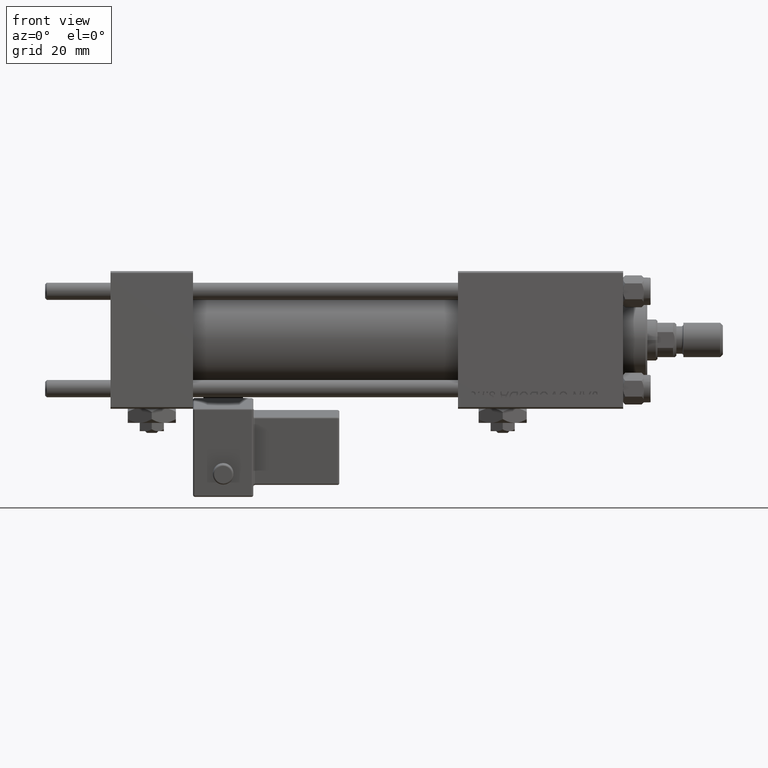
[diagram: clean part render]
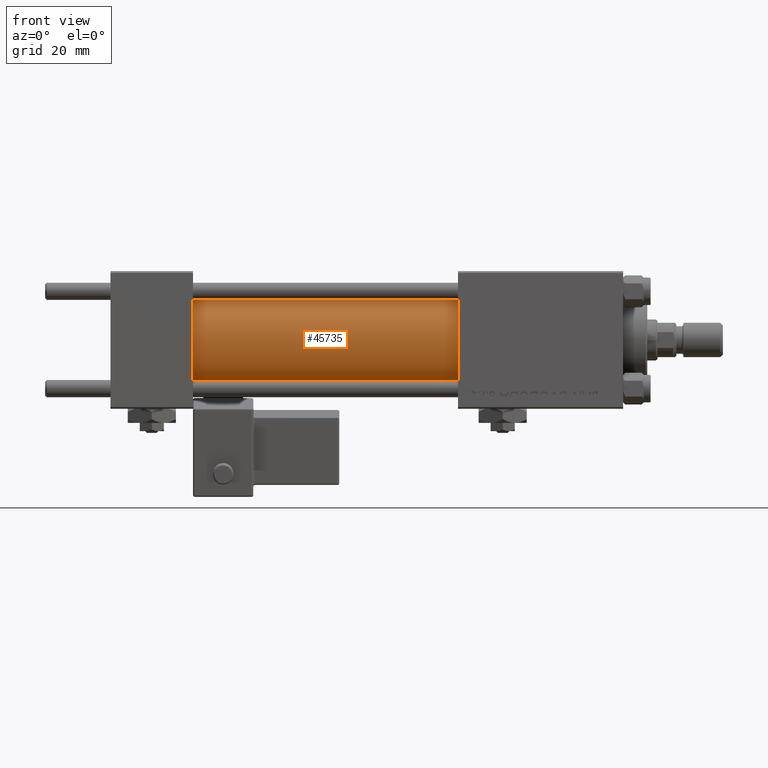
[diagram: same view with one face highlighted and labeled with its STEP entity id]
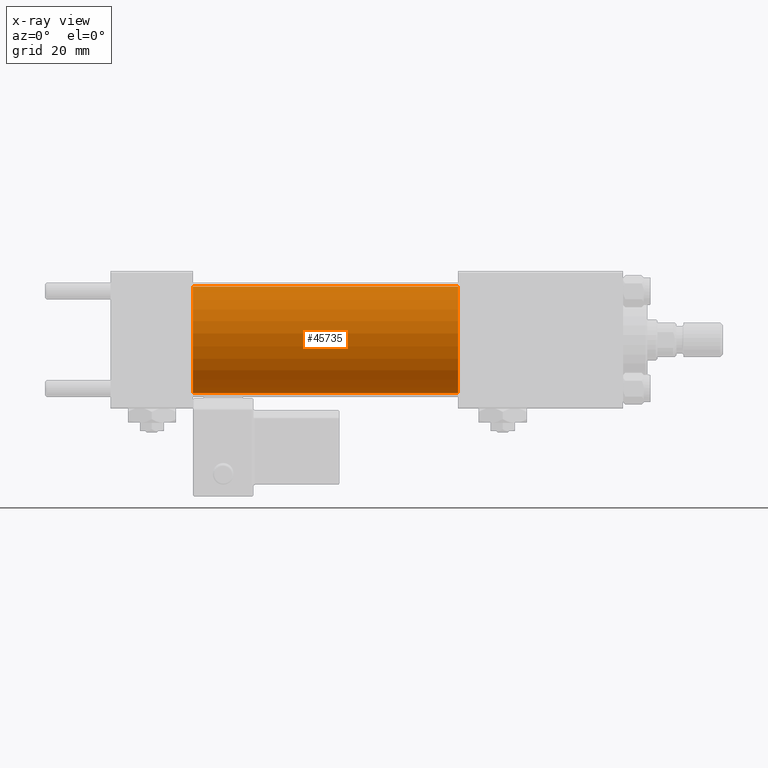
[diagram: x-ray of the same camera — body ghosted, the highlighted face saturated]
A machine part, front view. The second image highlights one B-rep face of the part: STEP entity #45735.
The next image is the same camera in x-ray: the body ghosted, the highlighted face saturated — about 0% of this face is hidden behind the body in this view.
In plain terms, the highlighted cylindrical surface (partial cylindrical patch) has radius 15.5 mm, axis along (-1, -0, -0).
Its self-contained STEP definition (entity closure, byte-faithful):
#266 = VERTEX_POINT ( 'NONE', #27279 ) ;
#1209 = CIRCLE ( 'NONE', #8256, 15.50000000000000000 ) ;
#4694 = EDGE_CURVE ( 'NONE', #14062, #24746, #32737, .T. ) ;
#7909 = DIRECTION ( 'NONE',  ( -1.000000000000000000, -0.000000000000000000, -0.000000000000000000 ) ) ;
#8256 = AXIS2_PLACEMENT_3D ( 'NONE', #14720, #44197, #40069 ) ;
#9709 = CARTESIAN_POINT ( 'NONE',  ( 101.0000000000000000, 1.898202538678397557E-15, -15.50000000000000000 ) ) ;
#12019 = VECTOR ( 'NONE', #17983, 1000.000000000000000 ) ;
#12058 = EDGE_LOOP ( 'NONE', ( #20817, #35299, #53140, #33158 ) ) ;
#14062 = VERTEX_POINT ( 'NONE', #26759 ) ;
#14720 = CARTESIAN_POINT ( 'NONE',  ( 23.99999999999999289, 0.000000000000000000, 0.000000000000000000 ) ) ;
#16024 = AXIS2_PLACEMENT_3D ( 'NONE', #29034, #24069, #32612 ) ;
#16094 = EDGE_CURVE ( 'NONE', #43942, #266, #51878, .T. ) ;
#17983 = DIRECTION ( 'NONE',  ( -1.000000000000000000, -0.000000000000000000, -0.000000000000000000 ) ) ;
#19291 = AXIS2_PLACEMENT_3D ( 'NONE', #36276, #48651, #40133 ) ;
#20817 = ORIENTED_EDGE ( 'NONE', *, *, #16094, .F. ) ;
#23105 = CARTESIAN_POINT ( 'NONE',  ( 23.99999999999999289, 0.000000000000000000, 15.50000000000000000 ) ) ;
#23802 = FACE_OUTER_BOUND ( 'NONE', #12058, .T. ) ;
#24069 = DIRECTION ( 'NONE',  ( -1.000000000000000000, -0.000000000000000000, -0.000000000000000000 ) ) ;
#24746 = VERTEX_POINT ( 'NONE', #23105 ) ;
#26759 = CARTESIAN_POINT ( 'NONE',  ( 101.0000000000000000, 0.000000000000000000, 15.50000000000000000 ) ) ;
#27279 = CARTESIAN_POINT ( 'NONE',  ( 23.99999999999999289, 1.898202538678397557E-15, -15.50000000000000000 ) ) ;
#29034 = CARTESIAN_POINT ( 'NONE',  ( 101.0000000000000000, 0.000000000000000000, 0.000000000000000000 ) ) ;
#32534 = CARTESIAN_POINT ( 'NONE',  ( 101.0000000000000000, 1.898202538678397557E-15, -15.50000000000000000 ) ) ;
#32612 = DIRECTION ( 'NONE',  ( 0.000000000000000000, 0.000000000000000000, 1.000000000000000000 ) ) ;
#32737 = LINE ( 'NONE', #48705, #36834 ) ;
#33158 = ORIENTED_EDGE ( 'NONE', *, *, #53655, .T. ) ;
#35299 = ORIENTED_EDGE ( 'NONE', *, *, #40295, .F. ) ;
#36276 = CARTESIAN_POINT ( 'NONE',  ( 101.0000000000000000, 0.000000000000000000, 0.000000000000000000 ) ) ;
#36834 = VECTOR ( 'NONE', #7909, 1000.000000000000000 ) ;
#36923 = CIRCLE ( 'NONE', #19291, 15.50000000000000000 ) ;
#40069 = DIRECTION ( 'NONE',  ( 0.000000000000000000, 0.000000000000000000, 1.000000000000000000 ) ) ;
#40133 = DIRECTION ( 'NONE',  ( 0.000000000000000000, 0.000000000000000000, -1.000000000000000000 ) ) ;
#40295 = EDGE_CURVE ( 'NONE', #14062, #43942, #36923, .T. ) ;
#43942 = VERTEX_POINT ( 'NONE', #32534 ) ;
#44197 = DIRECTION ( 'NONE',  ( 1.000000000000000000, 0.000000000000000000, 0.000000000000000000 ) ) ;
#45735 = ADVANCED_FACE ( 'NONE', ( #23802 ), #49664, .T. ) ;
#48651 = DIRECTION ( 'NONE',  ( 1.000000000000000000, 0.000000000000000000, 0.000000000000000000 ) ) ;
#48705 = CARTESIAN_POINT ( 'NONE',  ( 101.0000000000000000, 0.000000000000000000, 15.50000000000000000 ) ) ;
#49664 = CYLINDRICAL_SURFACE ( 'NONE', #16024, 15.50000000000000000 ) ;
#51878 = LINE ( 'NONE', #9709, #12019 ) ;
#53140 = ORIENTED_EDGE ( 'NONE', *, *, #4694, .T. ) ;
#53655 = EDGE_CURVE ( 'NONE', #24746, #266, #1209, .T. ) ;